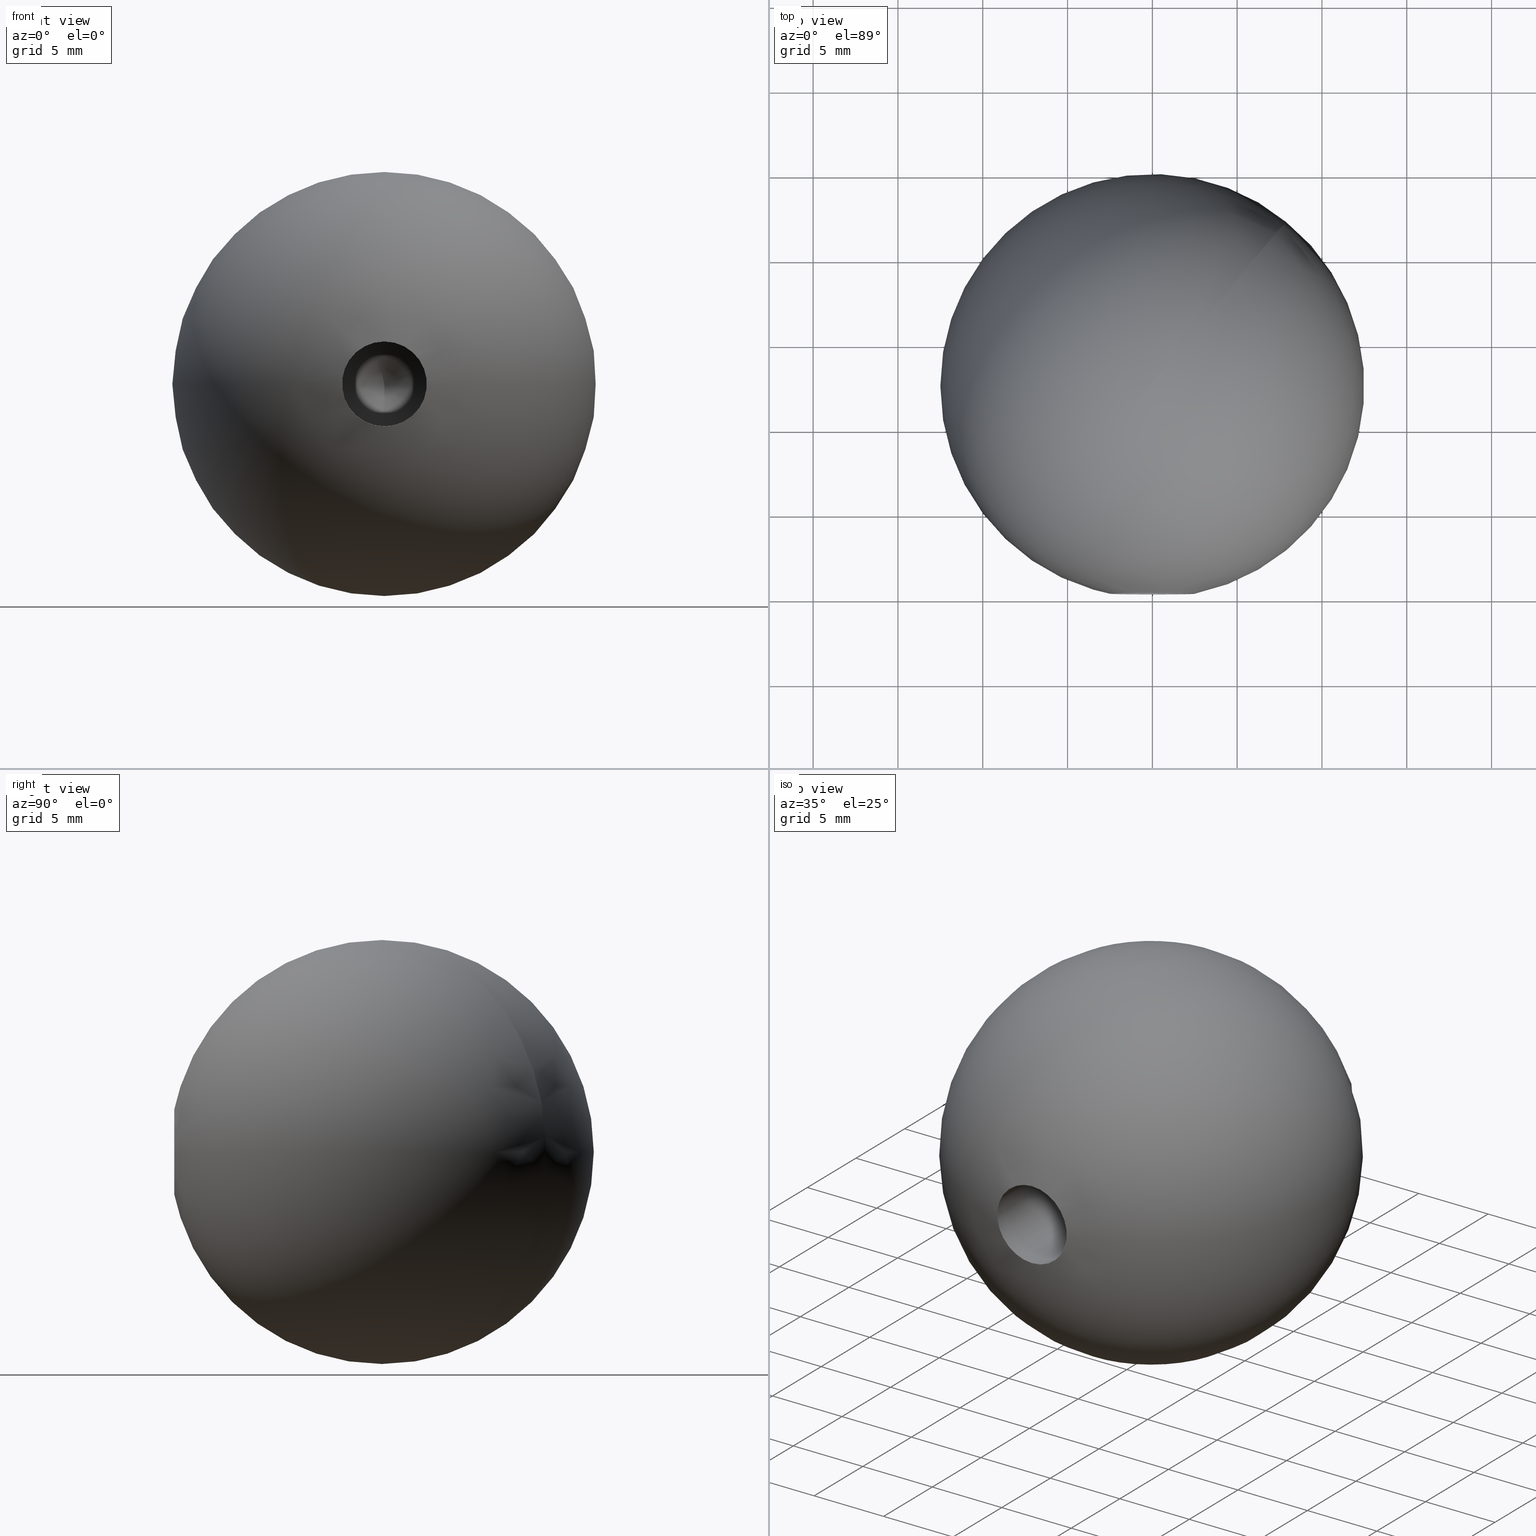
[diagram: canonical four-view strip — front | top / right | iso, engineering-drawing reading convention]
A machine part, canonical four-view strip (front | top / right | iso — engineering-drawing reading convention). The complete STEP part file that produces these views, byte-faithful:
ISO-10303-21;
HEADER;
FILE_DESCRIPTION (( 'STEP AP203' ),
    '1' );
FILE_NAME ('51025-240.step',
    '2023-09-08T07:10:31',
    ( '' ),
    ( '' ),
    'SwSTEP 2.0',
    'SolidWorks 2018',
    '' );
FILE_SCHEMA (( 'CONFIG_CONTROL_DESIGN' ));
ENDSEC;

DATA;
#1 = ORIENTED_EDGE ( 'NONE', *, *, #101, .F. ) ;
#2 = COORDINATED_UNIVERSAL_TIME_OFFSET ( 1, 0, .AHEAD. ) ;
#3 = PERSON_AND_ORGANIZATION ( #133, #19 ) ;
#4 = DIRECTION ( 'NONE',  ( -0.000000000000000000, -1.000000000000000000, -0.000000000000000000 ) ) ;
#5 = APPLICATION_CONTEXT ( 'configuration controlled 3d designs of mechanical parts and assemblies' ) ;
#6 = FACE_OUTER_BOUND ( 'NONE', #25, .T. ) ;
#7 = ADVANCED_FACE ( 'NONE', ( #104, #6 ), #26, .F. ) ;
#8 = LOCAL_TIME ( 9, 10, 31.00000000000000000, #118 ) ;
#9 = APPROVAL_ROLE ( '' ) ;
#10 = DATE_AND_TIME ( #36, #61 ) ;
#11 = DIRECTION ( 'NONE',  ( -0.000000000000000000, -1.000000000000000000, -0.000000000000000000 ) ) ;
#12 = DIRECTION ( 'NONE',  ( 0.000000000000000000, 0.000000000000000000, 1.000000000000000000 ) ) ;
#13 = CC_DESIGN_DATE_AND_TIME_ASSIGNMENT ( #86, #88, ( #128 ) ) ;
#14 = APPROVAL_STATUS ( 'not_yet_approved' ) ;
#15 = LOCAL_TIME ( 9, 10, 31.00000000000000000, #72 ) ;
#16 = ORIENTED_EDGE ( 'NONE', *, *, #39, .F. ) ;
#17 = DATE_AND_TIME ( #121, #62 ) ;
#18 = CC_DESIGN_PERSON_AND_ORGANIZATION_ASSIGNMENT ( #3, #56, ( #123 ) ) ;
#19 = ORGANIZATION ( 'UNSPECIFIED', 'UNSPECIFIED', '' ) ;
#20 = DIRECTION ( 'NONE',  ( 0.000000000000000000, 0.000000000000000000, -1.000000000000000000 ) ) ;
#21 = CALENDAR_DATE ( 2023, 8, 9 ) ;
#22 = CARTESIAN_POINT ( 'NONE',  ( 0.000000000000000000, 0.000000000000000000, 0.000000000000000000 ) ) ;
#23 = DIRECTION ( 'NONE',  ( 1.000000000000000000, 0.000000000000000000, 0.000000000000000000 ) ) ;
#24 = UNCERTAINTY_MEASURE_WITH_UNIT (LENGTH_MEASURE( 1.000000000000000082E-05 ), #42, 'distance_accuracy_value', 'NONE');
#25 = EDGE_LOOP ( 'NONE', ( #16 ) ) ;
#26 = CYLINDRICAL_SURFACE ( 'NONE', #108, 2.499999999999988454 ) ;
#27 = EDGE_LOOP ( 'NONE', ( #1 ) ) ;
#28 = COORDINATED_UNIVERSAL_TIME_OFFSET ( 1, 0, .AHEAD. ) ;
#29 = APPROVAL_DATE_TIME ( #74, #87 ) ;
#30 = PERSON_AND_ORGANIZATION ( #133, #19 ) ;
#31 = PERSON_AND_ORGANIZATION ( #133, #19 ) ;
#32 = APPROVAL_ROLE ( '' ) ;
#33 = MANIFOLD_SOLID_BREP ( 'M6 Gewindebohrung2', #134 ) ;
#34 = APPROVAL_ROLE ( '' ) ;
#35 = PERSON_AND_ORGANIZATION_ROLE ( 'design_owner' ) ;
#36 = CALENDAR_DATE ( 2023, 8, 9 ) ;
#37 = CC_DESIGN_APPROVAL ( #73, ( #46 ) ) ;
#38 = PRODUCT ( '51025-240', '51025-240', '', ( #54 ) ) ;
#39 = EDGE_CURVE ( 'NONE', #71, #71, #50, .T. ) ;
#40 = APPROVAL ( #14, 'UNSPECIFIED' ) ;
#41 = FACE_OUTER_BOUND ( 'NONE', #110, .T. ) ;
#42 =( LENGTH_UNIT ( ) NAMED_UNIT ( * ) SI_UNIT ( .MILLI., .METRE. ) );
#43 = CARTESIAN_POINT ( 'NONE',  ( 0.000000000000000000, 0.000000000000000000, 0.000000000000000000 ) ) ;
#44 = AXIS2_PLACEMENT_3D ( 'NONE', #51, #4, #53 ) ;
#45 =( NAMED_UNIT ( * ) SI_UNIT ( $, .STERADIAN. ) SOLID_ANGLE_UNIT ( ) );
#46 = PRODUCT_DEFINITION_FORMATION_WITH_SPECIFIED_SOURCE ( 'ANY', '', #38, .NOT_KNOWN. ) ;
#47 = PRODUCT_DEFINITION_SHAPE ( 'NONE', 'NONE',  #128 ) ;
#48 = VERTEX_POINT ( 'NONE', #127 ) ;
#49 = ORIENTED_EDGE ( 'NONE', *, *, #101, .T. ) ;
#50 = CIRCLE ( 'NONE', #117, 2.499999999999986677 ) ;
#51 = CARTESIAN_POINT ( 'NONE',  ( 0.000000000000000000, 17.00000000000000000, 0.000000000000000000 ) ) ;
#52 = CARTESIAN_POINT ( 'NONE',  ( 0.000000000000000000, 0.2525512860841062079, 0.000000000000000000 ) ) ;
#53 = DIRECTION ( 'NONE',  ( 0.000000000000000000, 0.000000000000000000, -1.000000000000000000 ) ) ;
#54 = MECHANICAL_CONTEXT ( 'NONE', #130, 'mechanical' ) ;
#55 = EDGE_LOOP ( 'NONE', ( #49 ) ) ;
#56 = PERSON_AND_ORGANIZATION_ROLE ( 'classification_officer' ) ;
#57 = APPROVAL_STATUS ( 'not_yet_approved' ) ;
#58 = CC_DESIGN_APPROVAL ( #87, ( #123 ) ) ;
#59 = PERSON_AND_ORGANIZATION ( #133, #19 ) ;
#60 = DIRECTION ( 'NONE',  ( -0.000000000000000000, -1.000000000000000000, -0.000000000000000000 ) ) ;
#61 = LOCAL_TIME ( 9, 10, 31.00000000000000000, #28 ) ;
#62 = LOCAL_TIME ( 9, 10, 31.00000000000000000, #106 ) ;
#63 = DIRECTION ( 'NONE',  ( 0.000000000000000000, 0.000000000000000000, -1.000000000000000000 ) ) ;
#64 = CC_DESIGN_SECURITY_CLASSIFICATION ( #123, ( #46 ) ) ;
#65 =( GEOMETRIC_REPRESENTATION_CONTEXT ( 3 ) GLOBAL_UNCERTAINTY_ASSIGNED_CONTEXT ( ( #24 ) ) GLOBAL_UNIT_ASSIGNED_CONTEXT ( ( #42, #109, #45 ) ) REPRESENTATION_CONTEXT ( 'NONE', 'WORKASPACE' ) );
#66 = ADVANCED_FACE ( 'NONE', ( #41 ), #103, .F. ) ;
#67 = APPLICATION_PROTOCOL_DEFINITION ( 'international standard', 'config_control_design', 1994, #130 ) ;
#68 = APPLICATION_PROTOCOL_DEFINITION ( 'international standard', 'config_control_design', 1994, #5 ) ;
#69 = PERSON_AND_ORGANIZATION ( #133, #19 ) ;
#70 = AXIS2_PLACEMENT_3D ( 'NONE', #52, #11, #77 ) ;
#71 = VERTEX_POINT ( 'NONE', #75 ) ;
#72 = COORDINATED_UNIVERSAL_TIME_OFFSET ( 1, 0, .AHEAD. ) ;
#73 = APPROVAL ( #85, 'UNSPECIFIED' ) ;
#74 = DATE_AND_TIME ( #81, #15 ) ;
#75 = CARTESIAN_POINT ( 'NONE',  ( 0.000000000000000000, 17.00000000000000000, -2.499999999999986677 ) ) ;
#76 = DIRECTION ( 'NONE',  ( -1.000000000000000000, -1.387778780781445676E-16, 0.000000000000000000 ) ) ;
#77 = DIRECTION ( 'NONE',  ( 0.000000000000000000, 0.000000000000000000, 1.000000000000000000 ) ) ;
#78 = SHAPE_DEFINITION_REPRESENTATION ( #47, #125 ) ;
#79 = PERSON_AND_ORGANIZATION_ROLE ( 'creator' ) ;
#80 = APPROVAL_PERSON_ORGANIZATION ( #30, #73, #34 ) ;
#81 = CALENDAR_DATE ( 2023, 8, 9 ) ;
#82 = AXIS2_PLACEMENT_3D ( 'NONE', #22, #12, #23 ) ;
#83 = DATE_AND_TIME ( #21, #8 ) ;
#84 = CARTESIAN_POINT ( 'NONE',  ( -6.933347799794072061E-32, 12.50000000000000000, 0.000000000000000000 ) ) ;
#85 = APPROVAL_STATUS ( 'not_yet_approved' ) ;
#86 = DATE_AND_TIME ( #111, #116 ) ;
#87 = APPROVAL ( #57, 'UNSPECIFIED' ) ;
#88 = DATE_TIME_ROLE ( 'creation_date' ) ;
#89 = APPROVAL_DATE_TIME ( #10, #40 ) ;
#90 = CC_DESIGN_PERSON_AND_ORGANIZATION_ASSIGNMENT ( #31, #79, ( #128 ) ) ;
#91 = PERSON_AND_ORGANIZATION ( #133, #19 ) ;
#92 = CC_DESIGN_PERSON_AND_ORGANIZATION_ASSIGNMENT ( #69, #35, ( #38 ) ) ;
#93 = APPROVAL_PERSON_ORGANIZATION ( #97, #40, #32 ) ;
#94 = CC_DESIGN_DATE_AND_TIME_ASSIGNMENT ( #83, #129, ( #123 ) ) ;
#95 = DIRECTION ( 'NONE',  ( -0.000000000000000000, 0.000000000000000000, -1.000000000000000000 ) ) ;
#96 = PRODUCT_RELATED_PRODUCT_CATEGORY ( 'detail', '', ( #38 ) ) ;
#97 = PERSON_AND_ORGANIZATION ( #133, #19 ) ;
#98 = SECURITY_CLASSIFICATION_LEVEL ( 'unclassified' ) ;
#99 = PERSON_AND_ORGANIZATION_ROLE ( 'creator' ) ;
#100 = ADVANCED_FACE ( 'NONE', ( #115 ), #126, .T. ) ;
#101 = EDGE_CURVE ( 'NONE', #48, #48, #119, .T. ) ;
#102 = ORIENTED_EDGE ( 'NONE', *, *, #39, .T. ) ;
#103 = CONICAL_SURFACE ( 'NONE', #44, 2.499999999999986677, 1.029744258676651647 ) ;
#104 = FACE_OUTER_BOUND ( 'NONE', #55, .T. ) ;
#105 = APPROVAL_PERSON_ORGANIZATION ( #124, #87, #9 ) ;
#106 = COORDINATED_UNIVERSAL_TIME_OFFSET ( 1, 0, .AHEAD. ) ;
#107 = CARTESIAN_POINT ( 'NONE',  ( 0.000000000000000000, 17.00000000000000000, 0.000000000000000000 ) ) ;
#108 = AXIS2_PLACEMENT_3D ( 'NONE', #43, #120, #20 ) ;
#109 =( NAMED_UNIT ( * ) PLANE_ANGLE_UNIT ( ) SI_UNIT ( $, .RADIAN. ) );
#110 = EDGE_LOOP ( 'NONE', ( #102 ) ) ;
#111 = CALENDAR_DATE ( 2023, 8, 9 ) ;
#112 = APPROVAL_DATE_TIME ( #17, #73 ) ;
#113 = CC_DESIGN_PERSON_AND_ORGANIZATION_ASSIGNMENT ( #91, #99, ( #46 ) ) ;
#114 = CC_DESIGN_PERSON_AND_ORGANIZATION_ASSIGNMENT ( #59, #131, ( #46 ) ) ;
#115 = FACE_OUTER_BOUND ( 'NONE', #27, .T. ) ;
#116 = LOCAL_TIME ( 9, 10, 31.00000000000000000, #2 ) ;
#117 = AXIS2_PLACEMENT_3D ( 'NONE', #107, #60, #63 ) ;
#118 = COORDINATED_UNIVERSAL_TIME_OFFSET ( 1, 0, .AHEAD. ) ;
#119 = CIRCLE ( 'NONE', #70, 2.499999999999988454 ) ;
#120 = DIRECTION ( 'NONE',  ( -0.000000000000000000, -1.000000000000000000, -0.000000000000000000 ) ) ;
#121 = CALENDAR_DATE ( 2023, 8, 9 ) ;
#122 = AXIS2_PLACEMENT_3D ( 'NONE', #84, #95, #76 ) ;
#123 = SECURITY_CLASSIFICATION ( '', '', #98 ) ;
#124 = PERSON_AND_ORGANIZATION ( #133, #19 ) ;
#125 = ADVANCED_BREP_SHAPE_REPRESENTATION ( '51025-240', ( #33, #82 ), #65 ) ;
#126 = SPHERICAL_SURFACE ( 'NONE', #122, 12.50000000000000000 ) ;
#127 = CARTESIAN_POINT ( 'NONE',  ( 0.000000000000000000, 0.2525512860841062079, 2.499999999999988454 ) ) ;
#128 = PRODUCT_DEFINITION ( 'UNKNOWN', '', #46, #135 ) ;
#129 = DATE_TIME_ROLE ( 'classification_date' ) ;
#130 = APPLICATION_CONTEXT ( 'configuration controlled 3d designs of mechanical parts and assemblies' ) ;
#131 = PERSON_AND_ORGANIZATION_ROLE ( 'design_supplier' ) ;
#132 = CC_DESIGN_APPROVAL ( #40, ( #128 ) ) ;
#133 = PERSON ( 'UNSPECIFIED', 'UNSPECIFIED', 'UNSPECIFIED', ('UNSPECIFIED'), ('UNSPECIFIED'), ('UNSPECIFIED') ) ;
#134 = CLOSED_SHELL ( 'NONE', ( #100, #66, #7 ) ) ;
#135 = DESIGN_CONTEXT ( 'detailed design', #5, 'design' ) ;
ENDSEC;
END-ISO-10303-21;
